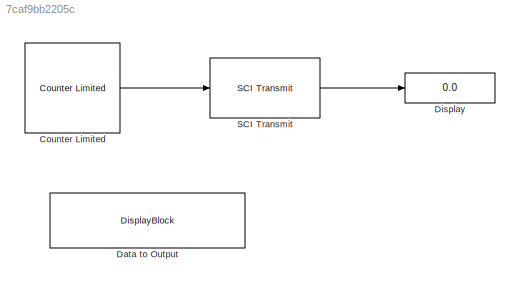
MODEL slx_7caf9bb2205c
KIND model
CONFIG AbsTol = auto
CONFIG EnableMultiTasking = on
CONFIG FixedStep = auto
CONFIG MaxStep = auto
CONFIG MinStep = auto
CONFIG RelTol = 1e-3
CONFIG SampleTimeConstraint = Unconstrained
CONFIG SolverName = FixedStepAuto
CONFIG StartTime = 0.0
CONFIG StopTime = Inf
BLOCK [Reference] Counter Limited  REF=simulink/Sources/Counter
Limited
  Ports = [0, 1]
  SourceBlock = simulink/Sources/Counter\nLimited
  SourceProductBaseCode = SL
  SourceType = Counter Limited
BLOCK [DisplayBlock] Data to Output
  LabelPosition = Hide
  Layout = Fill available space
  Opacity = 0.75
  Transparency = 1
BLOCK [Display] Display
  Decimation = 1
  Ports = [1]
BLOCK [Reference] SCI Transmit  REF=c280xlib/SCI Transmit
  Ports = [1, 1]
  SourceBlock = c280xlib/SCI Transmit
  SourceProductBaseCode = TIC2000
  SourceType = C28x SCI Transmit
LINE Counter Limited:1 -> SCI Transmit:1
LINE SCI Transmit:1 -> Display:1
